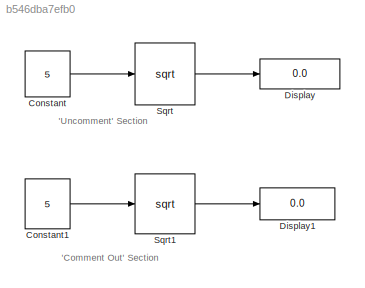
MODEL slx_b546dba7efb0
KIND model
CONFIG AbsTol = auto
CONFIG EnableMultiTasking = off
CONFIG FixedStep = auto
CONFIG MaxStep = auto
CONFIG MinStep = auto
CONFIG RelTol = 1e-3
CONFIG SampleTimeConstraint = Unconstrained
CONFIG Solver = VariableStepAuto
CONFIG SolverName = VariableStepAuto
CONFIG StartTime = 0.0
CONFIG StopTime = 10.0
BLOCK [Constant] Constant
  Value = 5
BLOCK [Constant] Constant1
  Commented = on
  Value = 5
BLOCK [Display] Display
  Decimation = 1
  Ports = [1]
BLOCK [Display] Display1
  Commented = on
  Decimation = 1
  Ports = [1]
BLOCK [Sqrt] Sqrt
BLOCK [Sqrt] Sqrt1
  Commented = on
ANNOTATION (root): ' Comment Out' Section
ANNOTATION (root): 'Uncomment' Section
LINE Constant1:1 -> Sqrt1:1
LINE Constant:1 -> Sqrt:1
LINE Sqrt1:1 -> Display1:1
LINE Sqrt:1 -> Display:1
